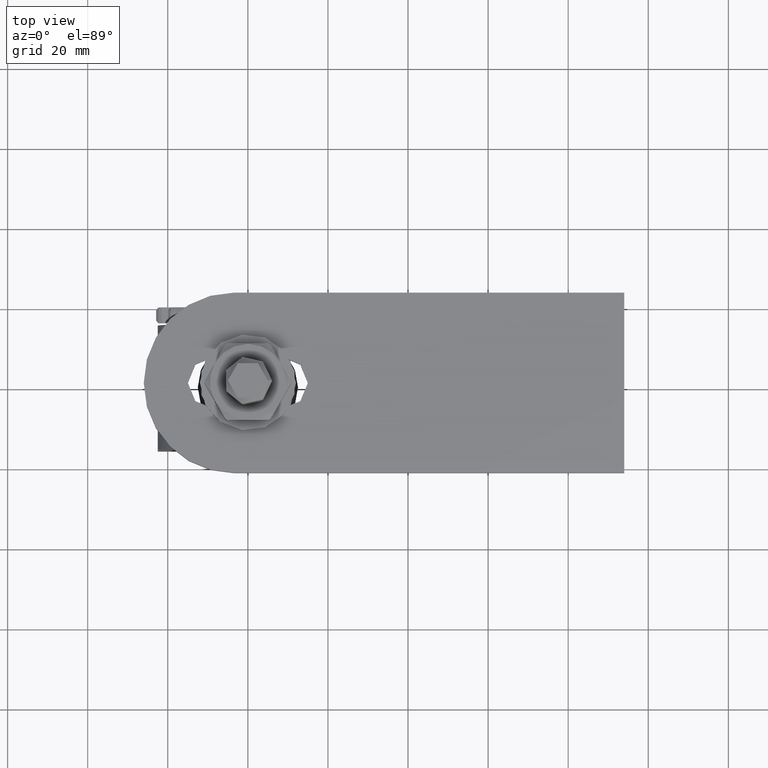
[diagram: clean part render]
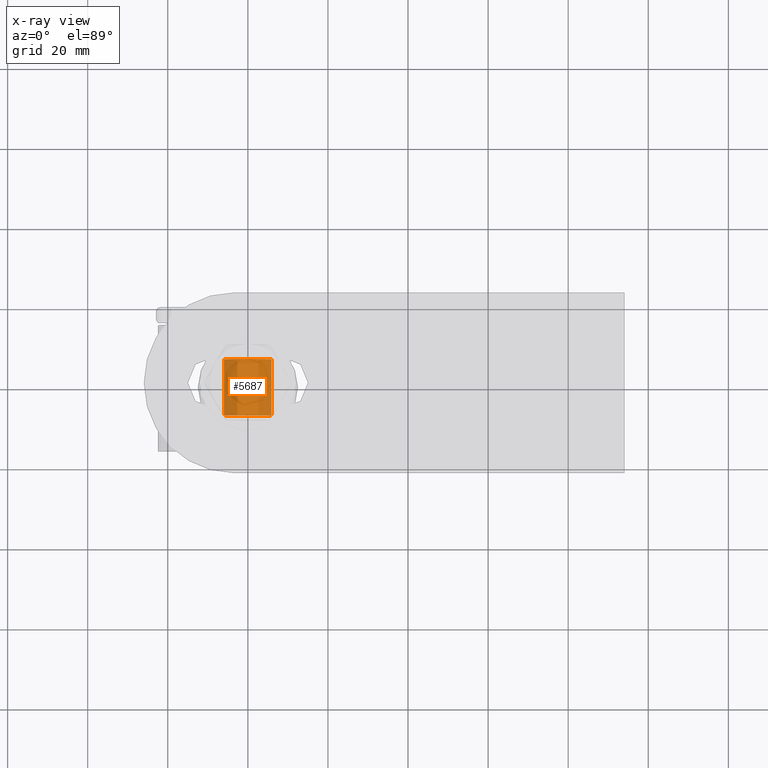
[diagram: x-ray — body ghosted, one internal face saturated and labeled with its STEP entity id]
A machine part, top view, then the same camera in x-ray: the body is ghosted and one INTERNAL B-rep face — a face not visible from any outside direction — is saturated and labeled: STEP entity #5687.
In plain terms, the highlighted cylindrical surface (bore or boss wall) has radius 6.1 mm, axis along (-0, -1, -0).
Its self-contained STEP definition (entity closure, byte-faithful):
#36 = VERTEX_POINT ( 'NONE', #9236 ) ;
#521 = DIRECTION ( 'NONE',  ( -0.000000000000000000, -1.000000000000000000, -1.836970198721029688E-16 ) ) ;
#1511 = CARTESIAN_POINT ( 'NONE',  ( 0.000000000000000000, 7.000000000000000000, 2.571758278209441267E-15 ) ) ;
#1521 = AXIS2_PLACEMENT_3D ( 'NONE', #8141, #12170, #3956 ) ;
#1563 = AXIS2_PLACEMENT_3D ( 'NONE', #1511, #2890, #12354 ) ;
#2037 = FACE_OUTER_BOUND ( 'NONE', #14830, .T. ) ;
#2890 = DIRECTION ( 'NONE',  ( -0.000000000000000000, -1.000000000000000000, -1.836970198721029688E-16 ) ) ;
#3096 = CIRCLE ( 'NONE', #1521, 6.100000000000000533 ) ;
#3348 = ORIENTED_EDGE ( 'NONE', *, *, #6710, .F. ) ;
#3956 = DIRECTION ( 'NONE',  ( 0.000000000000000000, 1.421904488505579408E-16, -1.000000000000000000 ) ) ;
#5687 = ADVANCED_FACE ( 'NONE', ( #2037, #6947 ), #14756, .F. ) ;
#6710 = EDGE_CURVE ( 'NONE', #8948, #8948, #13677, .T. ) ;
#6947 = FACE_OUTER_BOUND ( 'NONE', #11032, .T. ) ;
#7492 = DIRECTION ( 'NONE',  ( 0.000000000000000000, 1.421904488505579408E-16, -1.000000000000000000 ) ) ;
#8141 = CARTESIAN_POINT ( 'NONE',  ( 0.000000000000000000, -7.000000000000000888, -2.058420301703399758E-31 ) ) ;
#8948 = VERTEX_POINT ( 'NONE', #16094 ) ;
#9236 = CARTESIAN_POINT ( 'NONE',  ( 0.000000000000000000, -7.000000000000000000, -6.100000000000000533 ) ) ;
#10172 = AXIS2_PLACEMENT_3D ( 'NONE', #14203, #521, #7492 ) ;
#11032 = EDGE_LOOP ( 'NONE', ( #3348 ) ) ;
#12170 = DIRECTION ( 'NONE',  ( -0.000000000000000000, -1.000000000000000000, -1.836970198721029688E-16 ) ) ;
#12354 = DIRECTION ( 'NONE',  ( 0.000000000000000000, 1.421904488505579408E-16, -1.000000000000000000 ) ) ;
#12997 = ORIENTED_EDGE ( 'NONE', *, *, #15259, .T. ) ;
#13677 = CIRCLE ( 'NONE', #1563, 6.100000000000000533 ) ;
#14203 = CARTESIAN_POINT ( 'NONE',  ( 0.000000000000000000, -7.000000000000000000, 0.000000000000000000 ) ) ;
#14756 = CYLINDRICAL_SURFACE ( 'NONE', #10172, 6.100000000000000533 ) ;
#14830 = EDGE_LOOP ( 'NONE', ( #12997 ) ) ;
#15259 = EDGE_CURVE ( 'NONE', #36, #36, #3096, .T. ) ;
#16094 = CARTESIAN_POINT ( 'NONE',  ( 0.000000000000000000, 7.000000000000000888, -6.099999999999997868 ) ) ;